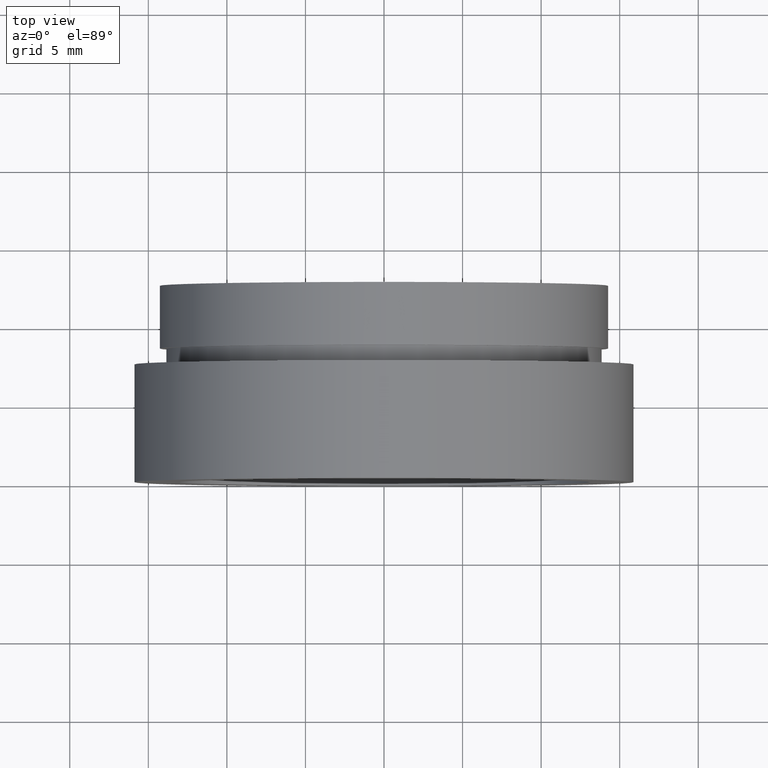
[diagram: clean part render]
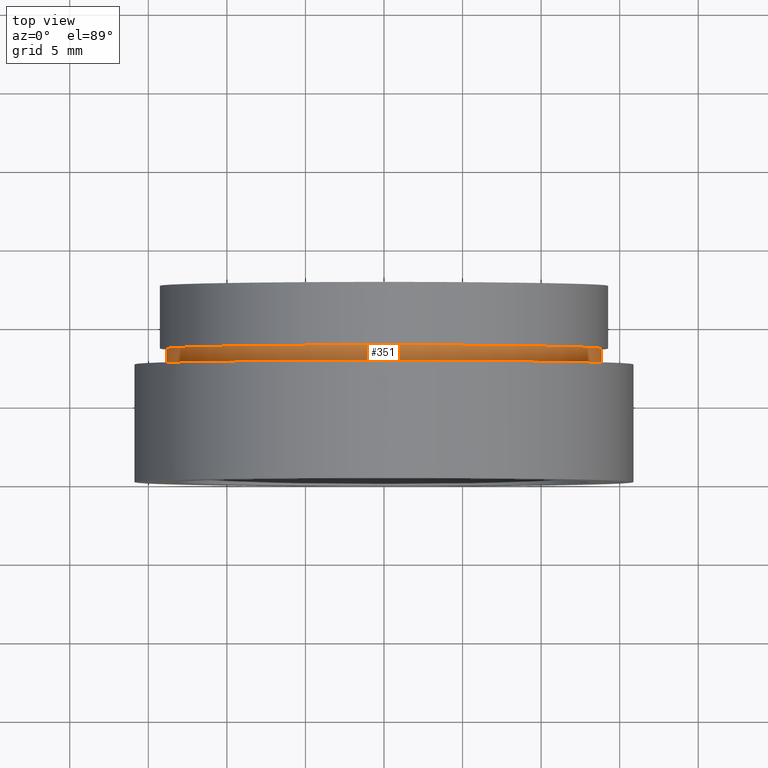
[diagram: same view with one face highlighted and labeled with its STEP entity id]
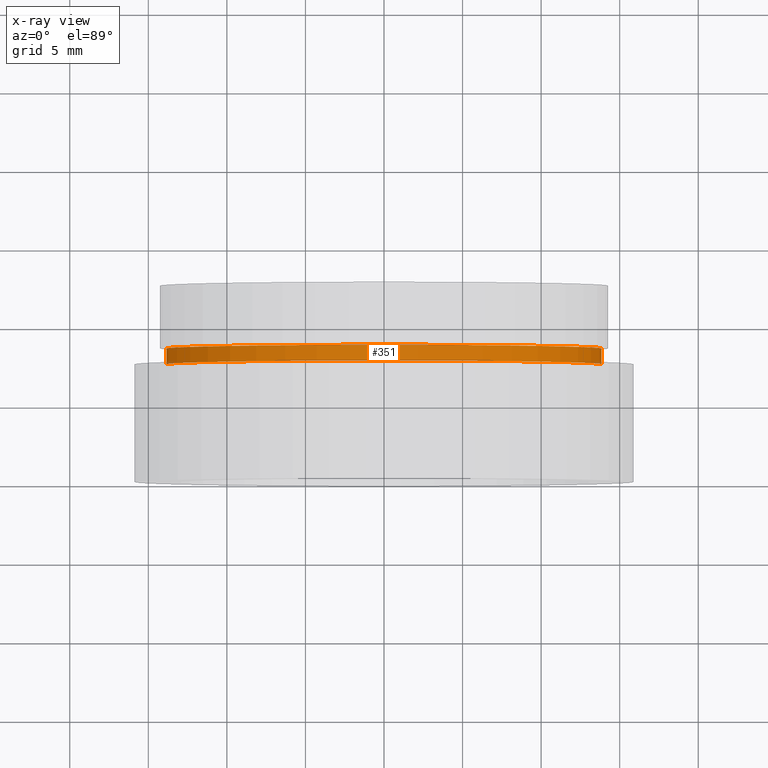
[diagram: x-ray of the same camera — body ghosted, the highlighted face saturated]
A machine part, top view. The second image highlights one B-rep face of the part: STEP entity #351.
The next image is the same camera in x-ray: the body ghosted, the highlighted face saturated — about 0% of this face is hidden behind the body in this view.
In plain terms, the highlighted cylindrical surface (partial cylindrical patch) has radius 13.85 mm, axis along (-0, 1, -0).
Its self-contained STEP definition (entity closure, byte-faithful):
#4 = CARTESIAN_POINT ( 'NONE',  ( 1.026991039163387700E-015, 8.499999999999998200, 0.0000000000000000000 ) ) ;
#9 = VERTEX_POINT ( 'NONE', #24 ) ;
#16 = VERTEX_POINT ( 'NONE', #366 ) ;
#24 = CARTESIAN_POINT ( 'NONE',  ( -13.84999999999999800, 7.499999999999996400, 0.0000000000000000000 ) ) ;
#39 = LINE ( 'NONE', #462, #322 ) ;
#53 = CIRCLE ( 'NONE', #253, 13.85000000000000000 ) ;
#69 = ORIENTED_EDGE ( 'NONE', *, *, #609, .F. ) ;
#112 = FACE_OUTER_BOUND ( 'NONE', #265, .T. ) ;
#122 = DIRECTION ( 'NONE',  ( -1.000000000000000000, -1.252507924893001600E-016, 0.0000000000000000000 ) ) ;
#156 = EDGE_CURVE ( 'NONE', #9, #16, #53, .T. ) ;
#167 = DIRECTION ( 'NONE',  ( -1.224646799147351000E-016, 1.000000000000000000, -0.0000000000000000000 ) ) ;
#197 = LINE ( 'NONE', #359, #392 ) ;
#237 = ORIENTED_EDGE ( 'NONE', *, *, #471, .T. ) ;
#240 = CIRCLE ( 'NONE', #275, 13.85000000000000000 ) ;
#253 = AXIS2_PLACEMENT_3D ( 'NONE', #569, #272, #122 ) ;
#257 = VERTEX_POINT ( 'NONE', #387 ) ;
#265 = EDGE_LOOP ( 'NONE', ( #317, #237, #69, #350 ) ) ;
#266 = DIRECTION ( 'NONE',  ( -1.000000000000000000, -1.252507924893001600E-016, 0.0000000000000000000 ) ) ;
#272 = DIRECTION ( 'NONE',  ( -1.224646799147351000E-016, 1.000000000000000000, -0.0000000000000000000 ) ) ;
#275 = AXIS2_PLACEMENT_3D ( 'NONE', #4, #378, #266 ) ;
#317 = ORIENTED_EDGE ( 'NONE', *, *, #156, .T. ) ;
#322 = VECTOR ( 'NONE', #466, 1000.000000000000000 ) ;
#350 = ORIENTED_EDGE ( 'NONE', *, *, #444, .F. ) ;
#351 = ADVANCED_FACE ( 'NONE', ( #112 ), #480, .T. ) ;
#359 = CARTESIAN_POINT ( 'NONE',  ( -13.85000000000000000, 16.88601823708207700, 0.0000000000000000000 ) ) ;
#366 = CARTESIAN_POINT ( 'NONE',  ( 13.85000000000000100, 7.500000000000000000, 1.696135816819084000E-015 ) ) ;
#367 = CARTESIAN_POINT ( 'NONE',  ( -13.84999999999999800, 8.499999999999996400, 0.0000000000000000000 ) ) ;
#378 = DIRECTION ( 'NONE',  ( -1.224646799147351000E-016, 1.000000000000000000, -0.0000000000000000000 ) ) ;
#387 = CARTESIAN_POINT ( 'NONE',  ( 13.85000000000000100, 8.500000000000000000, 1.696135816819084000E-015 ) ) ;
#392 = VECTOR ( 'NONE', #167, 1000.000000000000000 ) ;
#406 = CARTESIAN_POINT ( 'NONE',  ( 0.0000000000000000000, 16.88601823708207700, 0.0000000000000000000 ) ) ;
#444 = EDGE_CURVE ( 'NONE', #9, #469, #197, .T. ) ;
#462 = CARTESIAN_POINT ( 'NONE',  ( 13.85000000000000000, 16.88601823708207700, 1.696135816819084000E-015 ) ) ;
#466 = DIRECTION ( 'NONE',  ( -1.224646799147351000E-016, 1.000000000000000000, -0.0000000000000000000 ) ) ;
#469 = VERTEX_POINT ( 'NONE', #367 ) ;
#471 = EDGE_CURVE ( 'NONE', #16, #257, #39, .T. ) ;
#480 = CYLINDRICAL_SURFACE ( 'NONE', #510, 13.85000000000000000 ) ;
#500 = DIRECTION ( 'NONE',  ( -1.224646799147351000E-016, 1.000000000000000000, -0.0000000000000000000 ) ) ;
#510 = AXIS2_PLACEMENT_3D ( 'NONE', #406, #500, #557 ) ;
#557 = DIRECTION ( 'NONE',  ( -1.000000000000000000, 0.0000000000000000000, 0.0000000000000000000 ) ) ;
#569 = CARTESIAN_POINT ( 'NONE',  ( 1.149455719078122700E-015, 7.499999999999998200, 0.0000000000000000000 ) ) ;
#609 = EDGE_CURVE ( 'NONE', #469, #257, #240, .T. ) ;